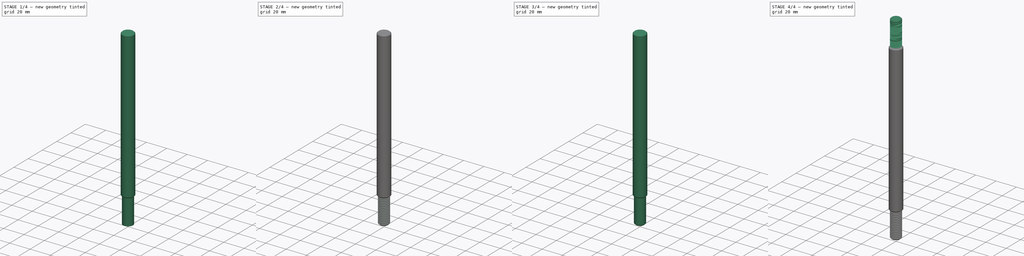
[diagram: build sequence overview — one tinted view per stage of 4, left to right]
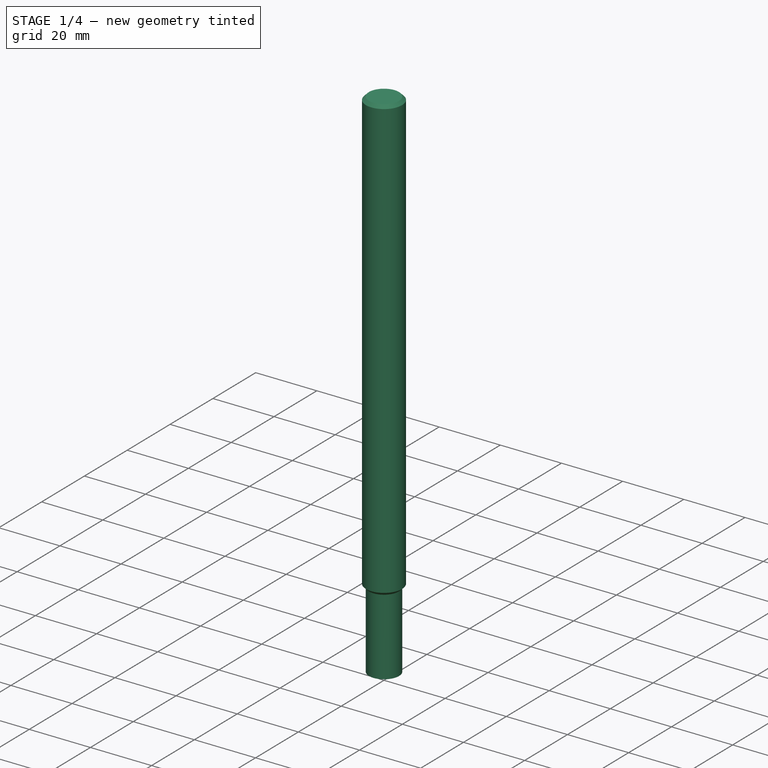
[diagram: stage 1 of 4 — iso view after this stage's code; geometry added in this stage tinted green]
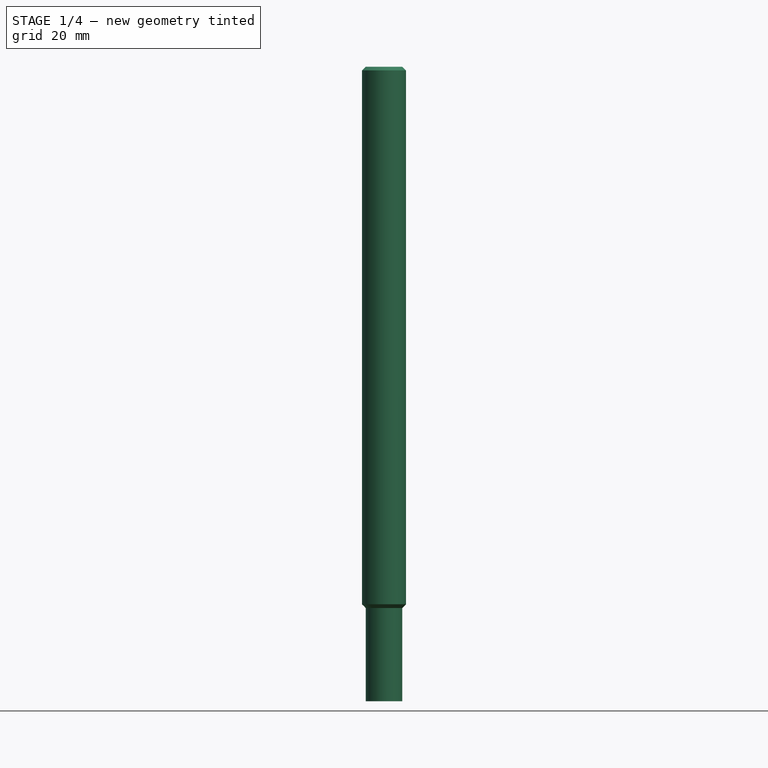
[diagram: stage 1 of 4 — front view after this stage's code; geometry added in this stage tinted green]
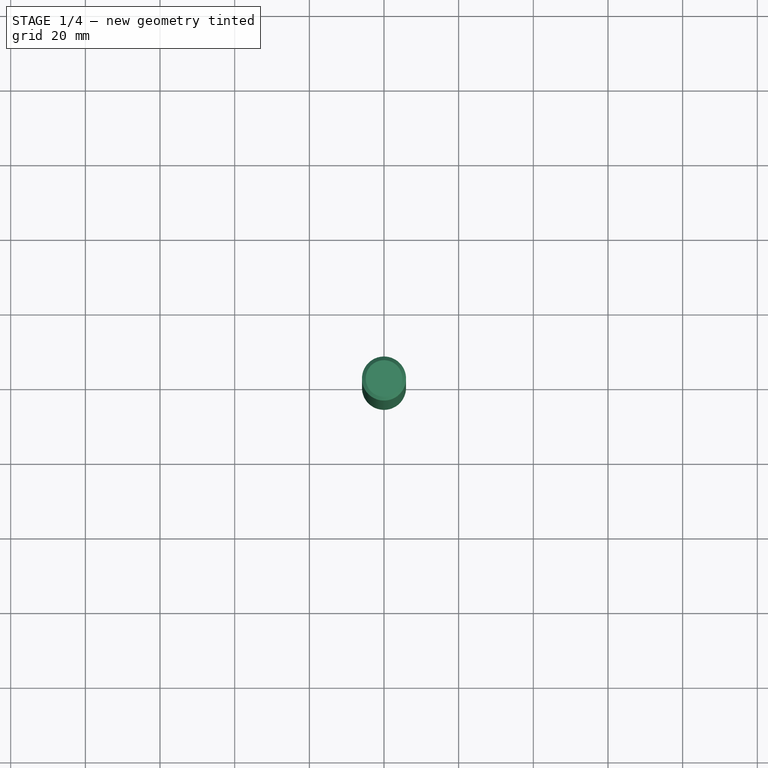
[diagram: stage 1 of 4 — top view after this stage's code; geometry added in this stage tinted green]
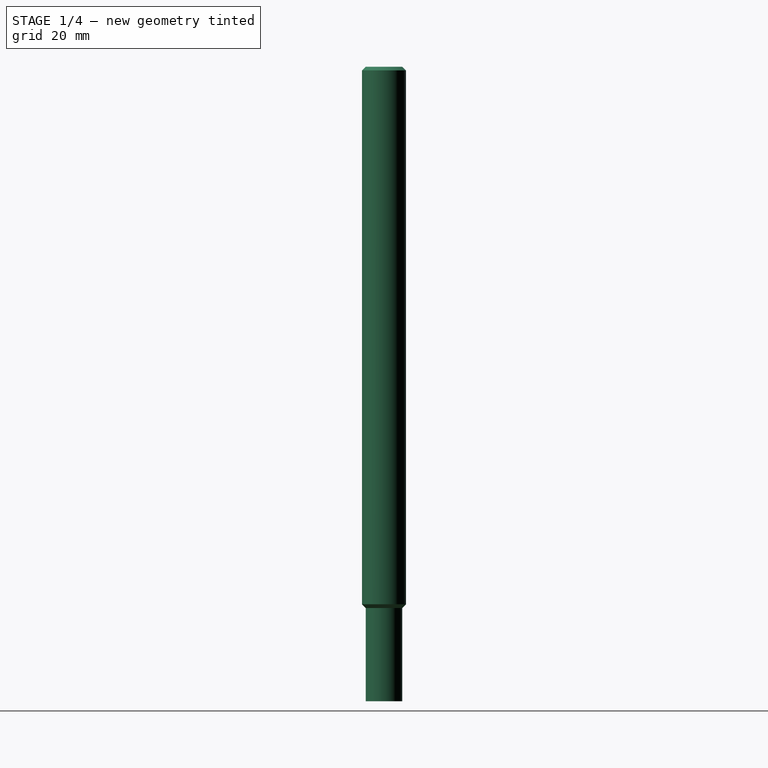
[diagram: stage 1 of 4 — right view after this stage's code; geometry added in this stage tinted green]
FCSTD DOCUMENT  (FreeCAD 0.16R5636 (Git))
Label: Air-spring-rod
License: CreativeCommons Attribution-ShareAlike
LicenseURL: http://creativecommons.org/licenses/by-sa/4.0/
objects: Sketcher::SketchObject×5, Part::Chamfer×3, PartDesign::Pad×2, Part::Feature×2, Part::Sweep×2, Part::Cut×2, Part::FeaturePython×2, Part::Cylinder×1
note: 21 computed .brp shape members not serialized (recipe doc carries the construction recipe); baked Part::Feature solids carry a one-line shape summary decoded from their .brp

FEATURE [Sketcher::SketchObject] Sketch
  sketch-geometry (1):
    g0: Circle CenterX=0 CenterY=0 CenterZ=0 NormalX=0 NormalY=0 NormalZ=1 Radius=4.9
  constraints (2):
    c: Coincident(g-1,g0)
    c: Radius(g0) = 4.9
FEATURE [PartDesign::Pad] Pad
  Length = 25
  Length2 = 100
  Sketch = -> Sketch
  Type = 0
FEATURE [Part::Cylinder] Cylinder
  Angle = 360
  Height = 145
  Placement = pos=(0,0,25) rot=(0,0,1;0rad)
  Radius = 5.9
FEATURE [Part::Chamfer] Chamfer002
  Base = -> Cylinder
  Edges = 2 edges r=1: [Edge1,Edge3]
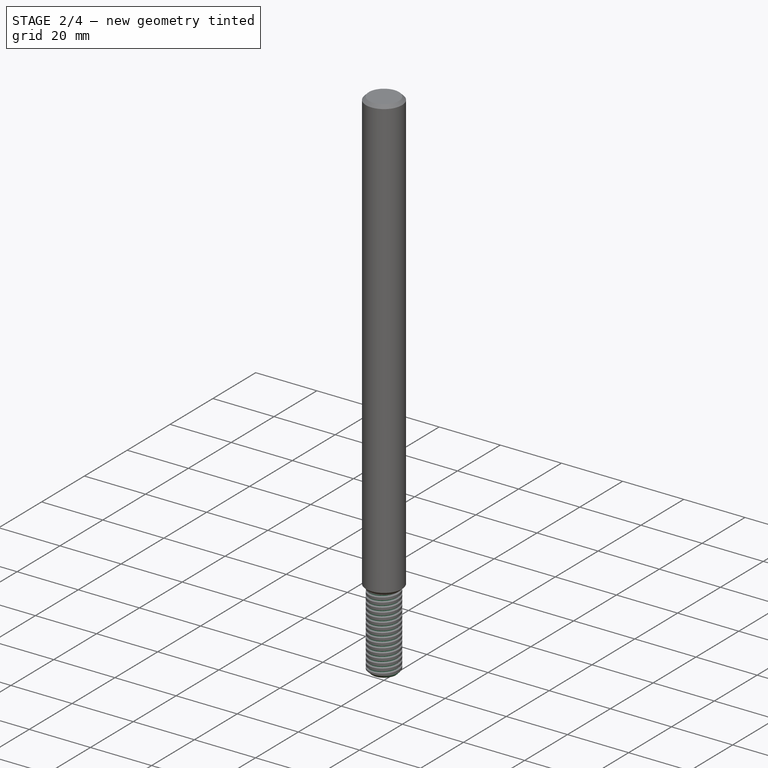
[diagram: stage 2 of 4 — iso view after this stage's code; geometry added in this stage tinted green]
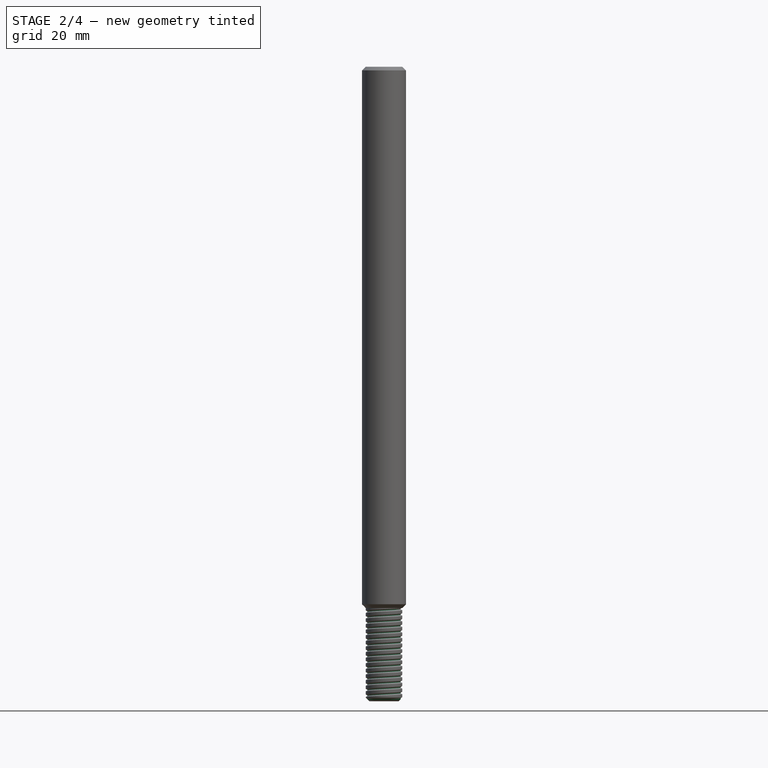
[diagram: stage 2 of 4 — front view after this stage's code; geometry added in this stage tinted green]
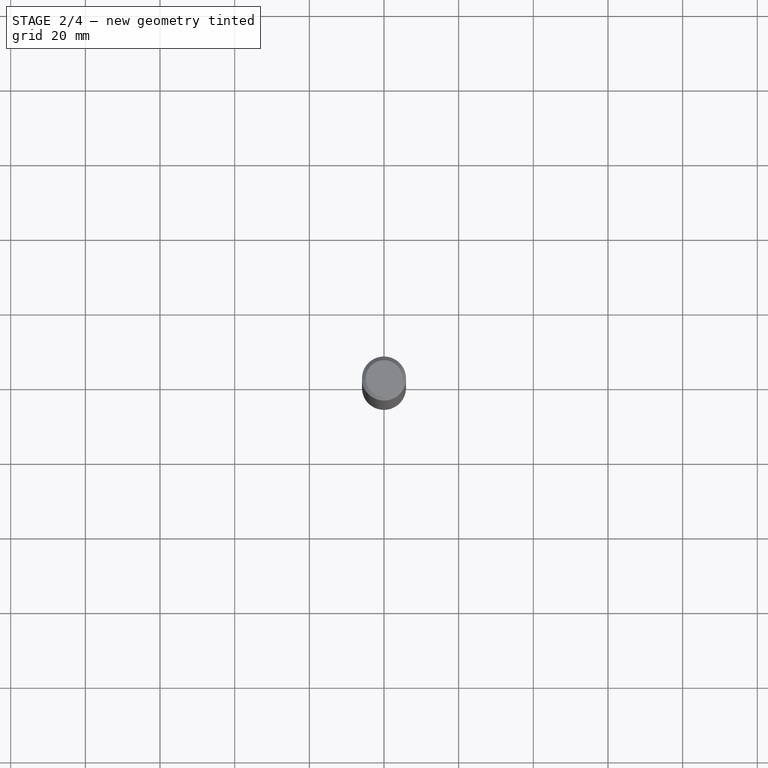
[diagram: stage 2 of 4 — top view after this stage's code; geometry added in this stage tinted green]
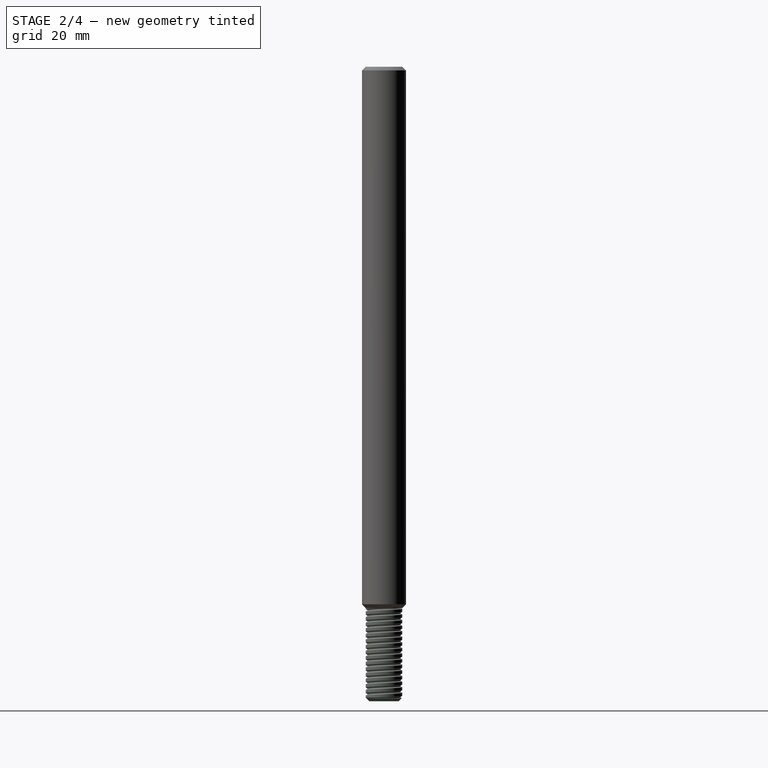
[diagram: stage 2 of 4 — right view after this stage's code; geometry added in this stage tinted green]
FEATURE [Sketcher::SketchObject] Sketch001
  Placement = pos=(0,0,0) rot=(1,0,0;1.5708rad)
  sketch-geometry (4):
    g0: LineSegment StartX=4.95 StartY=0.374342 StartZ=0 EndX=4.464 EndY=0.09375 EndZ=0
    g1: LineSegment StartX=4.464 StartY=0.09375 StartZ=0 EndX=4.464 EndY=-0.09375 EndZ=0
    g2: LineSegment StartX=4.464 StartY=-0.09375 StartZ=0 EndX=4.95 EndY=-0.374342 EndZ=0
    g3: LineSegment StartX=4.95 StartY=0.374342 StartZ=0 EndX=4.95 EndY=-0.374342 EndZ=0
  constraints (11):
    c: Coincident(g0,g1)
    c: Coincident(g1,g2)
    c: Vertical(g1)
    c: Angle(g2,g0) = 1.0472
    c: Symmetric(g2,g0,g-1)
    c: Symmetric(g1,g0,g-1)
    c: DistanceX(g-1,g1) = 4.464
    c: DistanceY(g1,g0) = 0.1875
    c: Coincident(g3,g2)
    c: Coincident(g3,g0)
    c: DistanceX(g-1,g2) = 4.95
FEATURE [Part::Feature] Shape
  shape: bbox 8.929 x 8.929 x 27 mm, 0 faces, 0 solids (baked)
FEATURE [Part::Sweep] Sweep
  Frenet = true
  Placement = pos=(0,0,-0.75) rot=(0,0,1;0rad)
  Sections = -> [Sketch001]
  Solid = true
  Spine = -> Shape [Edge1]
  Transition = 1
FEATURE [Part::Chamfer] Chamfer
  Base = -> Pad
  Edges = 1 edges r=1: [Edge2]
FEATURE [Part::Cut] Cut
  Base = -> Chamfer
  Tool = -> Sweep
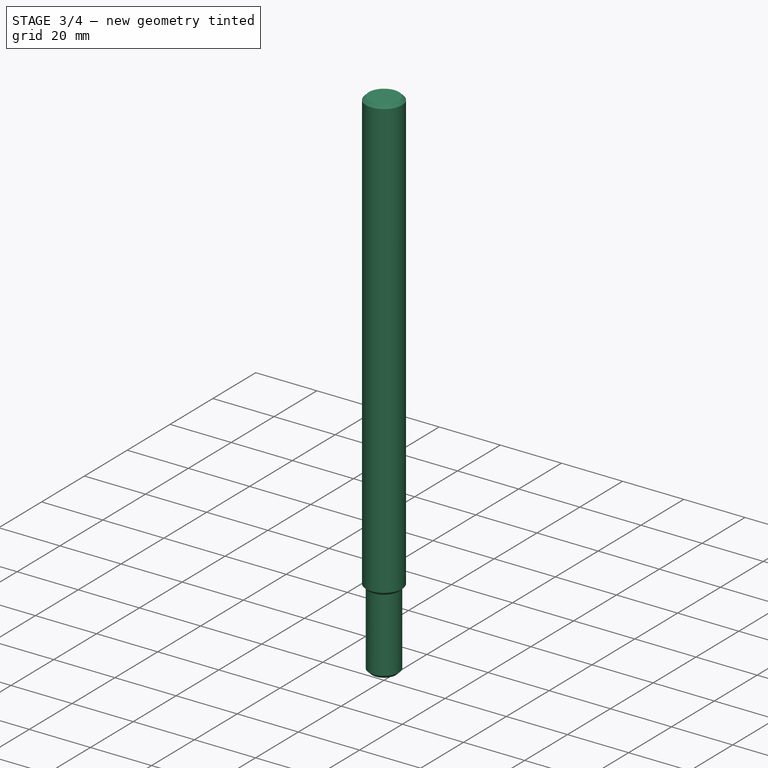
[diagram: stage 3 of 4 — iso view after this stage's code; geometry added in this stage tinted green]
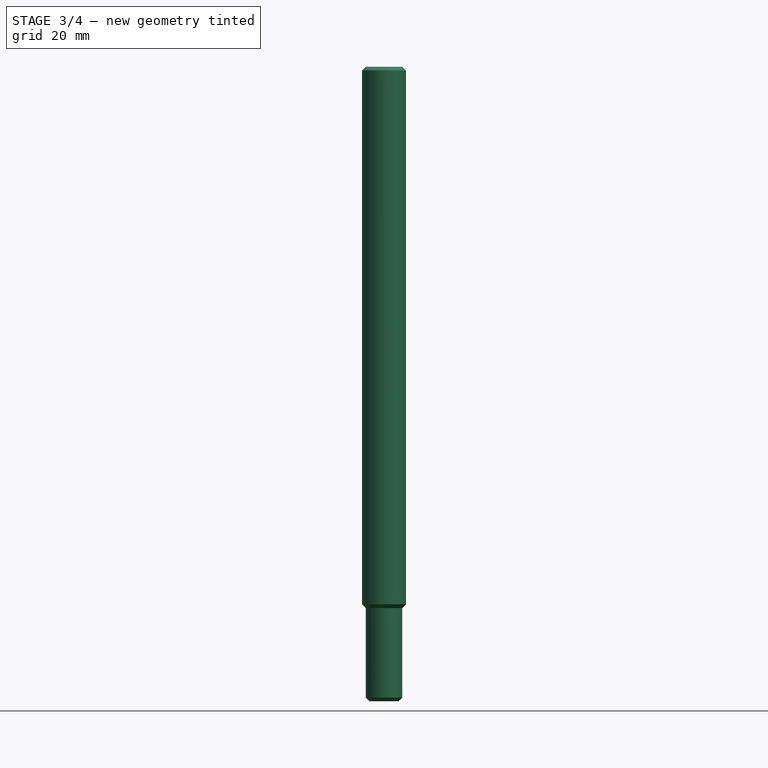
[diagram: stage 3 of 4 — front view after this stage's code; geometry added in this stage tinted green]
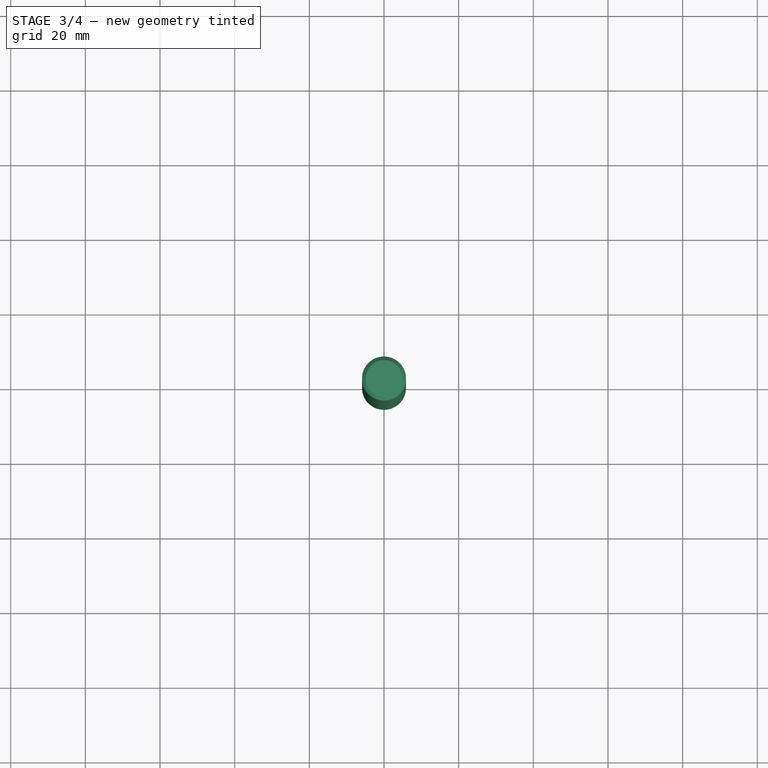
[diagram: stage 3 of 4 — top view after this stage's code; geometry added in this stage tinted green]
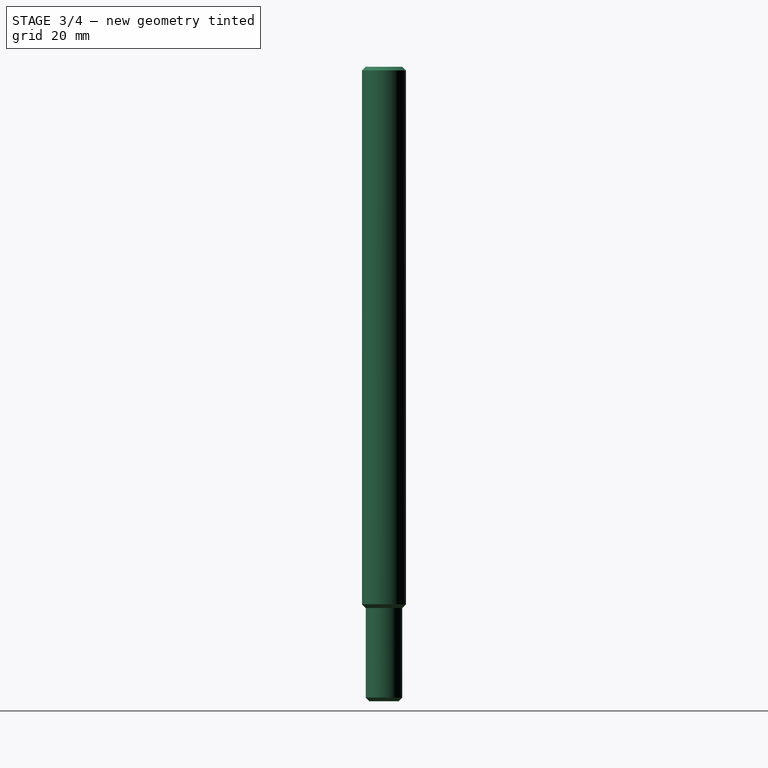
[diagram: stage 3 of 4 — right view after this stage's code; geometry added in this stage tinted green]
FEATURE [Sketcher::SketchObject] Sketch002
  Placement = pos=(0,0,25) rot=(0,0,1;0rad)
  Support = -> Cut [Face8]
FEATURE [Sketcher::SketchObject] Sketch003
  sketch-geometry (1):
    g0: Circle CenterX=0 CenterY=0 CenterZ=0 NormalX=0 NormalY=0 NormalZ=1 Radius=4.9
  constraints (2):
    c: Coincident(g-1,g0)
    c: Radius(g0) = 4.9
FEATURE [PartDesign::Pad] Pad001
  Length = 25
  Length2 = 100
  Sketch = -> Sketch003
  Type = 0
FEATURE [Part::Chamfer] Chamfer001
  Base = -> Pad001
  Edges = 1 edges r=1: [Edge2]
FEATURE [Part::FeaturePython] Connect  # WARN: FeaturePython — macro-defined, semantics opaque (R4)
  Base = -> Cut
  Mode = 1
  Refine = true
  Tool = -> Chamfer002
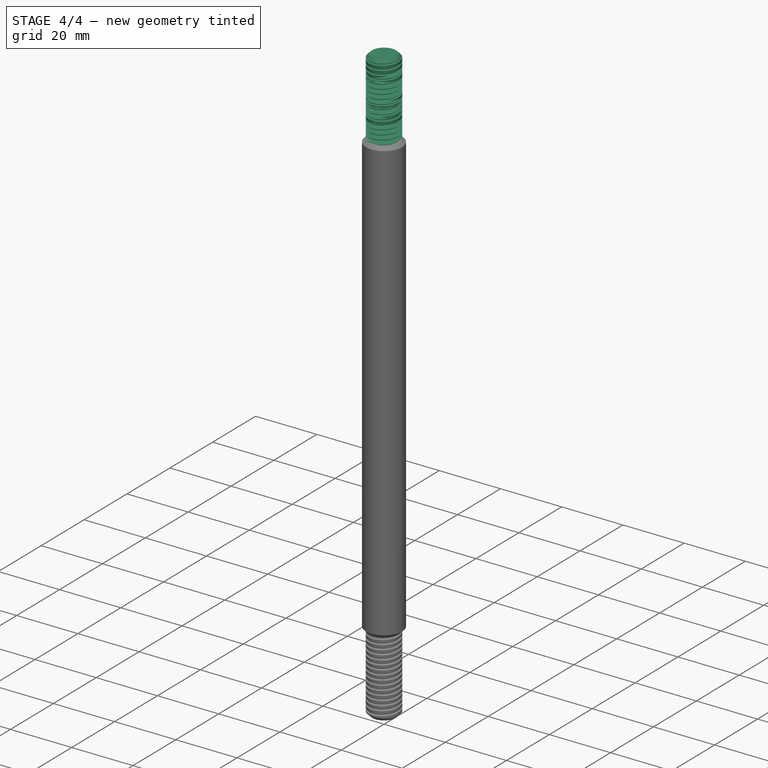
[diagram: stage 4 of 4 — iso view after this stage's code; geometry added in this stage tinted green]
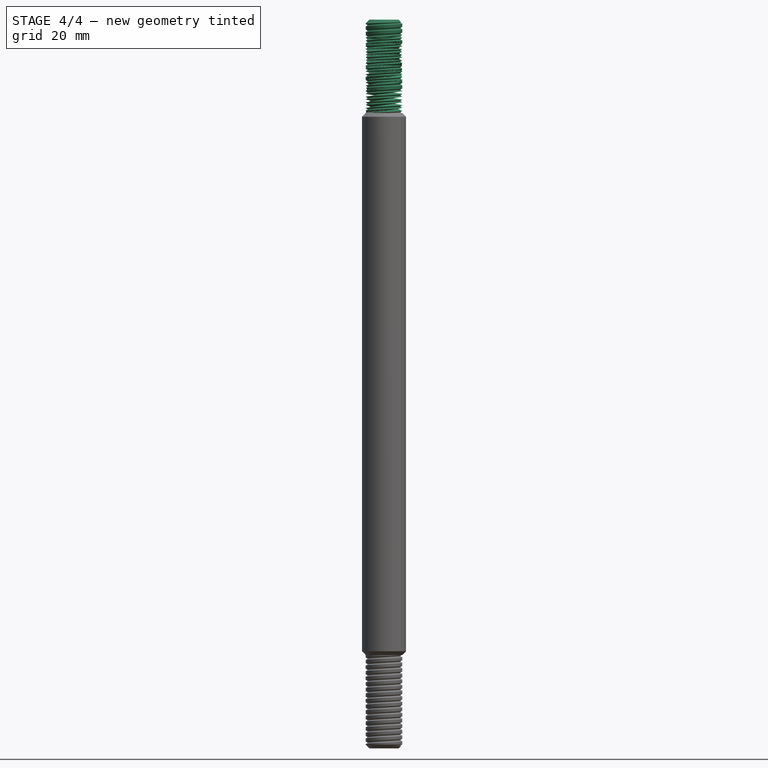
[diagram: stage 4 of 4 — front view after this stage's code; geometry added in this stage tinted green]
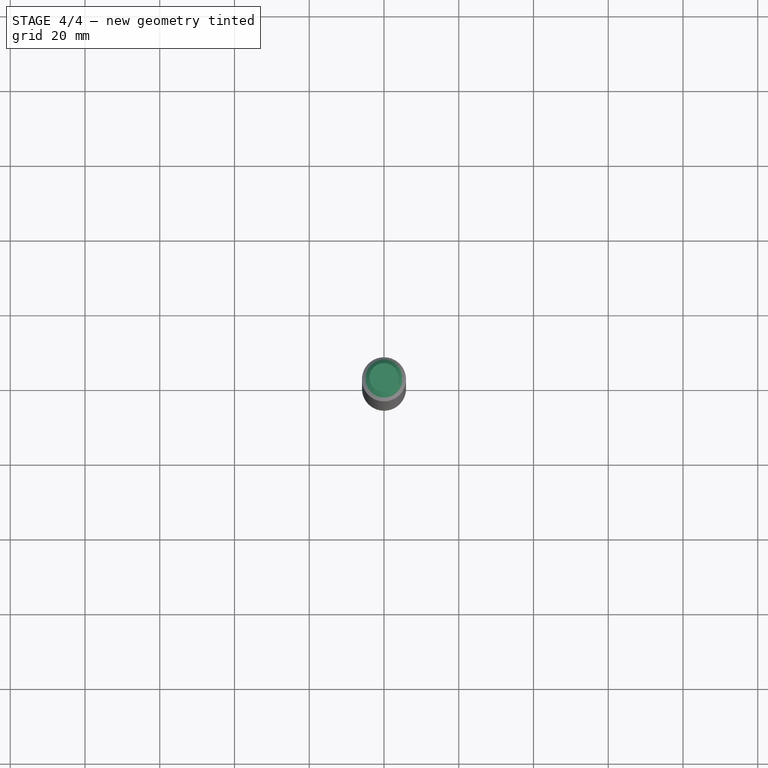
[diagram: stage 4 of 4 — top view after this stage's code; geometry added in this stage tinted green]
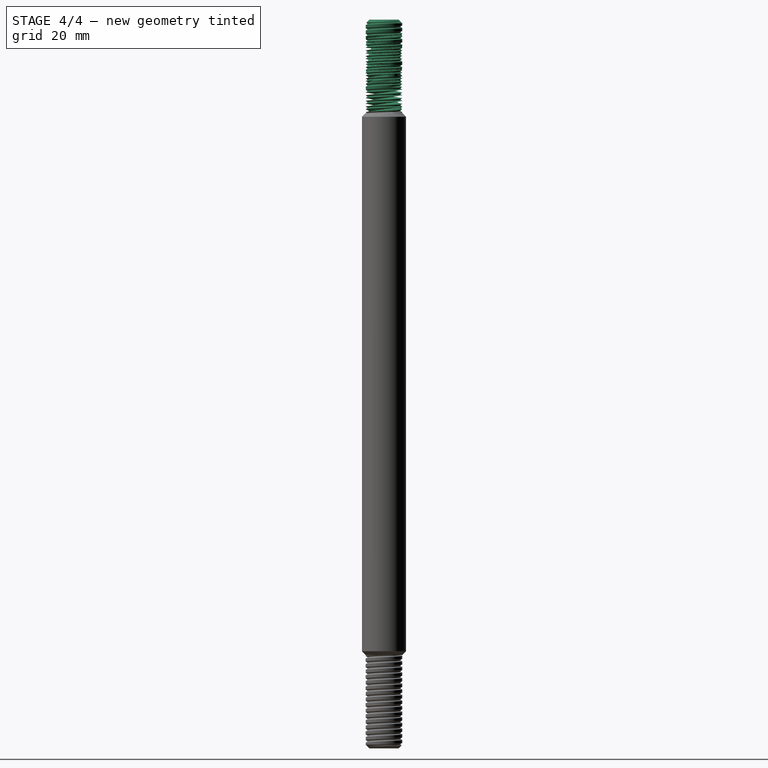
[diagram: stage 4 of 4 — right view after this stage's code; geometry added in this stage tinted green]
FEATURE [Sketcher::SketchObject] Sketch004
  Placement = pos=(0,0,0) rot=(1,0,0;1.5708rad)
  sketch-geometry (4):
    g0: LineSegment StartX=4.95 StartY=0.374342 StartZ=0 EndX=4.464 EndY=0.09375 EndZ=0
    g1: LineSegment StartX=4.464 StartY=0.09375 StartZ=0 EndX=4.464 EndY=-0.09375 EndZ=0
    g2: LineSegment StartX=4.464 StartY=-0.09375 StartZ=0 EndX=4.95 EndY=-0.374342 EndZ=0
    g3: LineSegment StartX=4.95 StartY=0.374342 StartZ=0 EndX=4.95 EndY=-0.374342 EndZ=0
  constraints (11):
    c: Coincident(g0,g1)
    c: Coincident(g1,g2)
    c: Vertical(g1)
    c: Angle(g2,g0) = 1.0472
    c: Symmetric(g2,g0,g-1)
    c: Symmetric(g1,g0,g-1)
    c: DistanceX(g-1,g1) = 4.464
    c: DistanceY(g1,g0) = 0.1875
    c: Coincident(g3,g2)
    c: Coincident(g3,g0)
    c: DistanceX(g-1,g2) = 4.95
FEATURE [Part::Feature] Shape001
  shape: bbox 8.929 x 8.929 x 27 mm, 0 faces, 0 solids (baked)
FEATURE [Part::Sweep] Sweep001
  Frenet = true
  Placement = pos=(0,0,-0.75) rot=(0,0,1;0rad)
  Sections = -> [Sketch004]
  Solid = true
  Spine = -> Shape001 [Edge1]
  Transition = 1
FEATURE [Part::Cut] Cut001
  Base = -> Chamfer001
  Placement = pos=(0,0,195) rot=(1,0,0;3.14159rad)
  Tool = -> Sweep001
FEATURE [Part::FeaturePython] Connect001  # WARN: FeaturePython — macro-defined, semantics opaque (R4)
  Base = -> Connect
  Mode = 1
  Refine = true
  Tool = -> Cut001
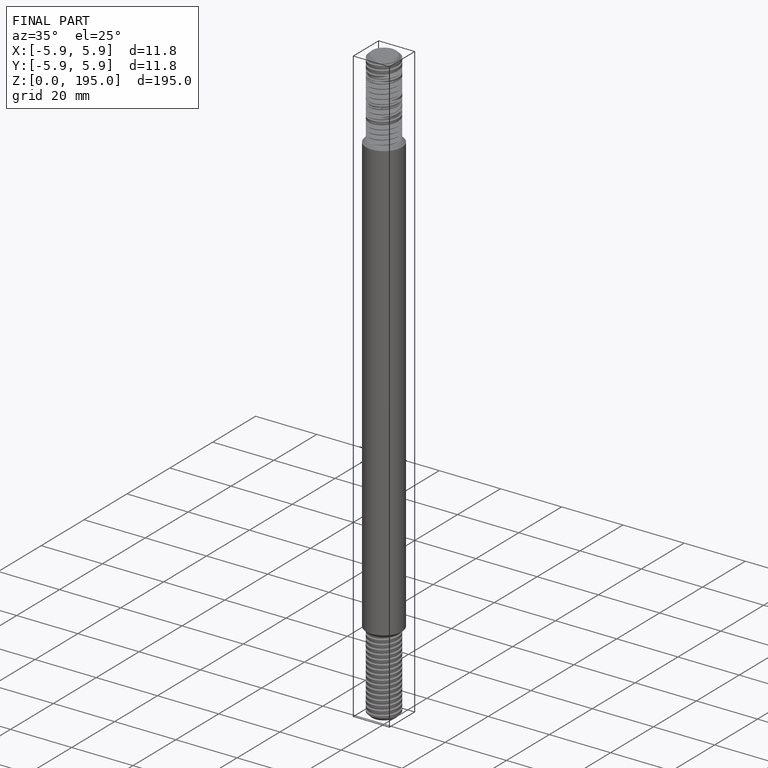
[diagram: finished part — iso view with bounding-box wireframe]
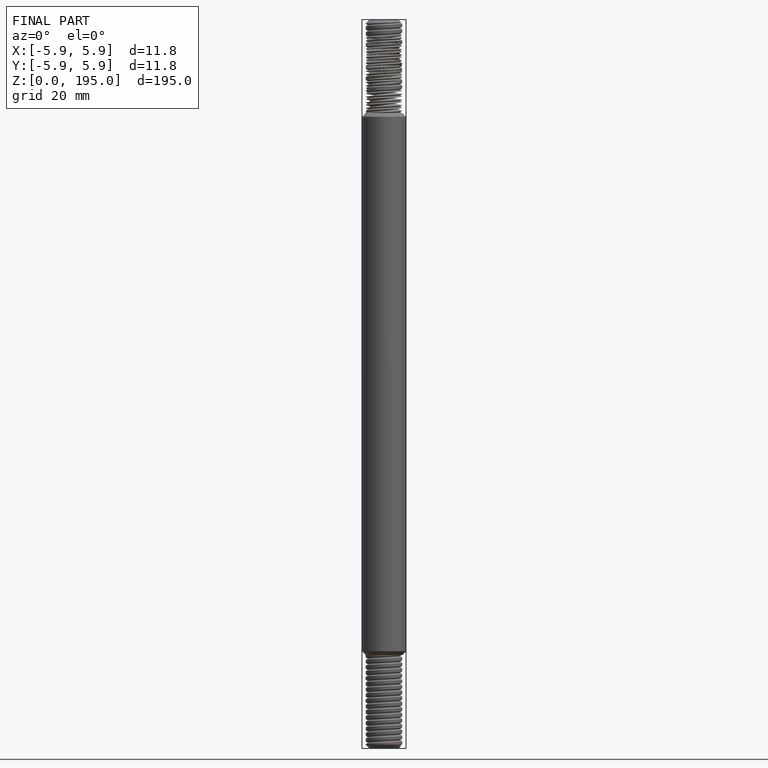
[diagram: finished part — front view with bounding-box wireframe]
